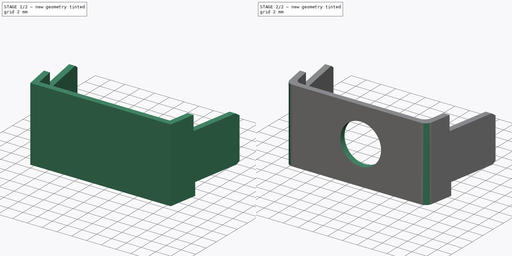
[diagram: build sequence overview — one tinted view per stage of 2, left to right]
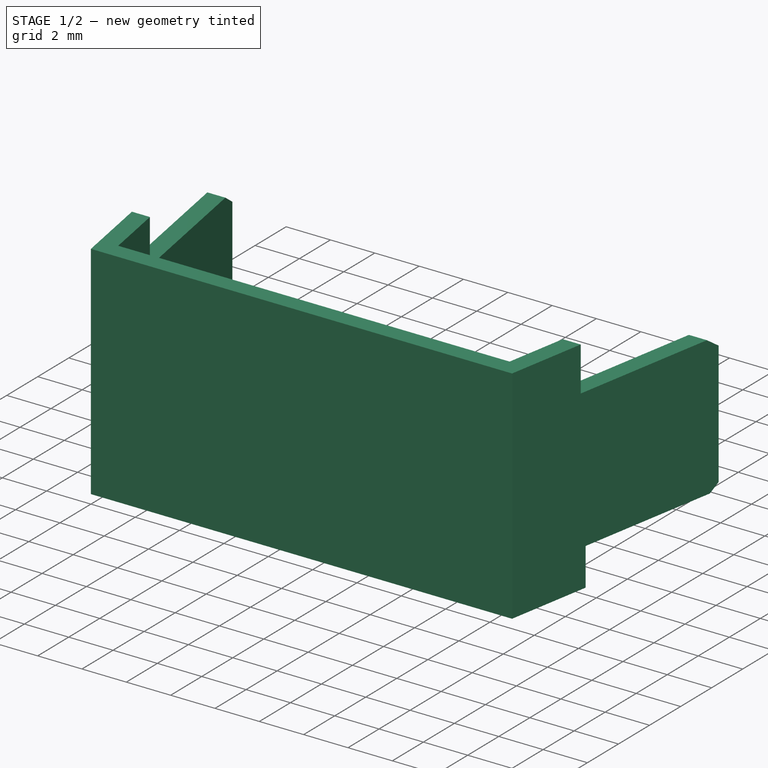
[diagram: stage 1 of 2 — iso view after this stage's code; geometry added in this stage tinted green]
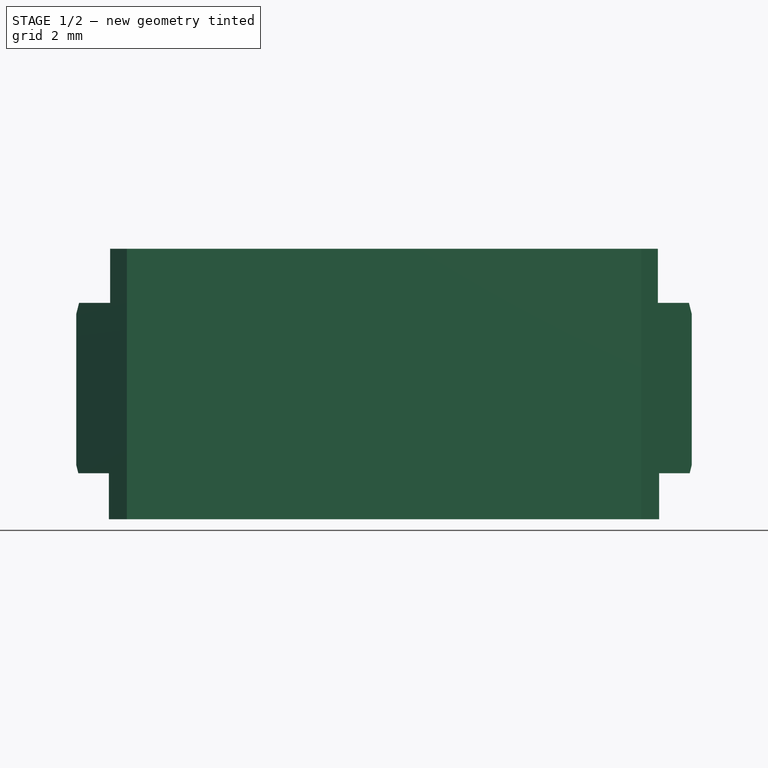
[diagram: stage 1 of 2 — front view after this stage's code; geometry added in this stage tinted green]
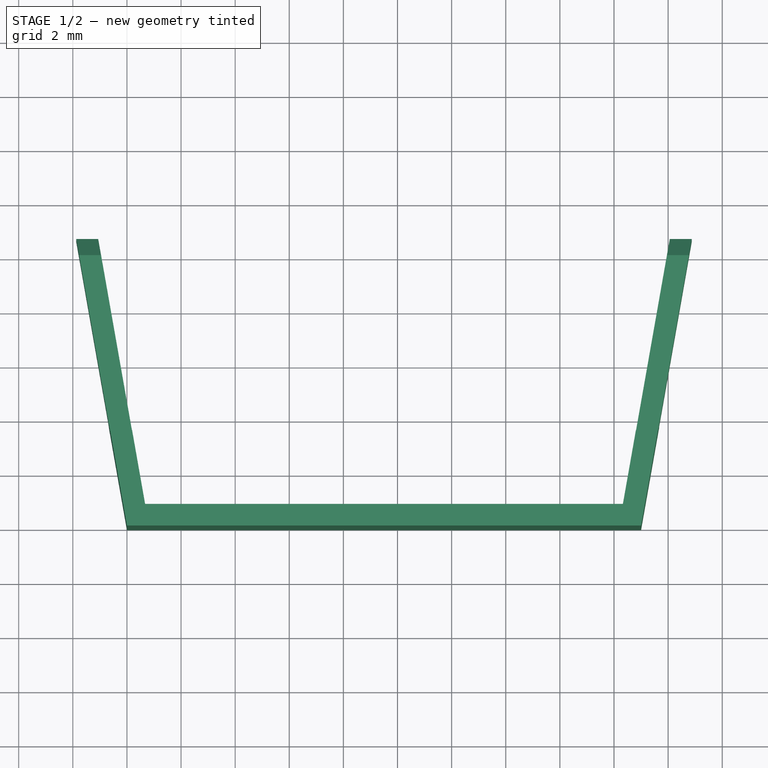
[diagram: stage 1 of 2 — top view after this stage's code; geometry added in this stage tinted green]
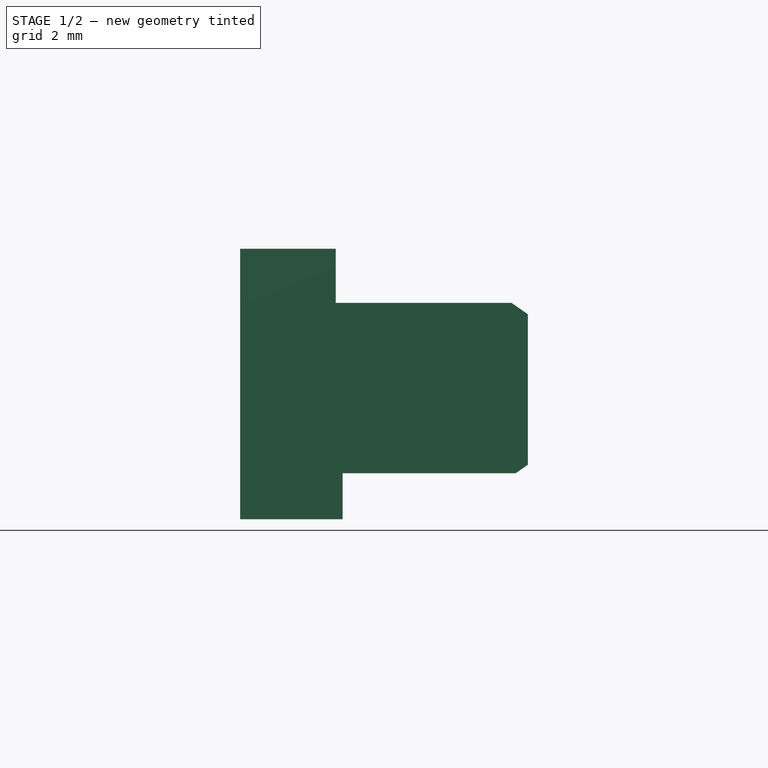
[diagram: stage 1 of 2 — right view after this stage's code; geometry added in this stage tinted green]
FCSTD DOCUMENT  (FreeCAD 0.18R16110 (Git))
Label: RIV236
License: All rights reserved
LicenseURL: http://en.wikipedia.org/wiki/All_rights_reserved
objects: Sketcher::SketchObject×3, PartDesign::Pad×1, PartDesign::Plane×1, PartDesign::Pocket×1, PartDesign::Hole×1, PartDesign::Fillet×1, PartDesign::Body×1
note: 12 computed .brp shape members not serialized (recipe doc carries the construction recipe); baked Part::Feature solids carry a one-line shape summary decoded from their .brp

FEATURE [Sketcher::SketchObject] Sketch
  MapMode = 5
  Support = -> [XY_Plane]
  sketch-geometry (9):
    g0: LineSegment StartX=0 StartY=0 StartZ=0 EndX=19 EndY=0 EndZ=0
    g1: LineSegment StartX=18.3287 StartY=0.8 StartZ=0 EndX=0.67128 EndY=0.8 EndZ=0
    g2: LineSegment StartX=18.3287 StartY=0.8 StartZ=0 EndX=20.1142 EndY=10.9262 EndZ=0
    g3: LineSegment StartX=20.1142 StartY=10.9262 StartZ=0 EndX=20.9021 EndY=10.7873 EndZ=0
    g4: LineSegment StartX=20.9021 StartY=10.7873 StartZ=0 EndX=19 EndY=0 EndZ=0
    g5: LineSegment [constr] StartX=9.5 StartY=8.74222 StartZ=0 EndX=9.5 EndY=-6.08325 EndZ=0
    g6: LineSegment StartX=0 StartY=0 StartZ=0 EndX=-1.90209 EndY=10.7873 EndZ=0
    g7: LineSegment StartX=-1.90209 StartY=10.7873 StartZ=0 EndX=-1.11425 EndY=10.9262 EndZ=0
    g8: LineSegment StartX=-1.11425 StartY=10.9262 StartZ=0 EndX=0.67128 EndY=0.8 EndZ=0
  constraints (20):
    c: Horizontal(g0)
    c: Coincident(g0,g-1)
    c: Coincident(g2,g1)
    c: Coincident(g3,g2)
    c: Coincident(g4,g3)
    c: Coincident(g4,g0)
    c: Parallel(g2,g4)
    c: Symmetric(g1,g1,g5)
    c: Symmetric(g0,g0,g5)
    c: Coincident(g6,g0)
    c: Coincident(g7,g6)
    c: Coincident(g8,g7)
    c: Coincident(g8,g1)
    c: Symmetric(g7,g2,g5)
    c: Symmetric(g6,g3,g5)
    c: DistanceY(g0,g1) = 0.8
    c: Distance(g3) = 0.8
    c: Perpendicular(g4,g3)
    c: Angle(g2,g1) = 1.74533
    c: DistanceX(g0,g0) = 19
FEATURE [PartDesign::Pad] Pad
  Length = 10
  Length2 = 100
  Profile = -> Sketch
  Type = 0
FEATURE [PartDesign::Plane] DatumPlane
  AttachmentOffset = pos=(0,0,0) rot=(0,1,0;1.5708rad)
  Length = 24.6949
  MapMode = 5
  Placement = pos=(0,0.8,0) rot=(-0.57735,0.57735,0.57735;4.18879rad)
  ResizeMode = 0
  Support = -> [Pad]
  Width = 24.0627
FEATURE [Sketcher::SketchObject] Sketch001
  MapMode = 5
  Placement = pos=(0,0.8,0) rot=(-0.57735,0.57735,0.57735;4.18879rad)
  Support = -> [DatumPlane]
  sketch-geometry (10):
    g0: LineSegment StartX=-2.73216 StartY=10.9119 StartZ=0 EndX=-2.73216 EndY=7.99998 EndZ=0
    g1: LineSegment StartX=-2.73216 StartY=7.99998 StartZ=0 EndX=-9.22805 EndY=7.99998 EndZ=0
    g2: LineSegment StartX=-9.22805 StartY=7.99998 StartZ=0 EndX=-9.83216 EndY=7.57697 EndZ=0
    g3: LineSegment StartX=-9.83216 StartY=7.57697 StartZ=0 EndX=-9.83216 EndY=2.01537 EndZ=0
    g4: LineSegment StartX=-9.83216 StartY=2.01537 StartZ=0 EndX=-9.38174 EndY=1.69998 EndZ=0
    g5: LineSegment StartX=-9.38174 StartY=1.69998 StartZ=0 EndX=-2.98514 EndY=1.69998 EndZ=0
    g6: LineSegment StartX=-2.98514 StartY=1.69998 StartZ=0 EndX=-2.98514 EndY=-3.59647 EndZ=0
    g7: LineSegment StartX=-2.98514 StartY=-3.59647 StartZ=0 EndX=-13.7321 EndY=-3.59647 EndZ=0
    g8: LineSegment StartX=-13.7321 StartY=-3.59647 StartZ=0 EndX=-13.7321 EndY=10.9119 EndZ=0
    g9: LineSegment StartX=-2.73216 StartY=10.9119 StartZ=0 EndX=-13.7321 EndY=10.9119 EndZ=0
  constraints (22):
    c: Vertical(g0)
    c: Coincident(g1,g0)
    c: Horizontal(g1)
    c: Coincident(g2,g1)
    c: Coincident(g3,g2)
    c: Vertical(g3)
    c: Coincident(g4,g3)
    c: Coincident(g5,g4)
    c: Horizontal(g5)
    c: Coincident(g6,g5)
    c: Vertical(g6)
    c: Coincident(g7,g6)
    c: Horizontal(g7)
    c: Coincident(g8,g7)
    c: Vertical(g8)
    c: Coincident(g9,g0)
    c: Coincident(g9,g8)
    c: Horizontal(g9)
    c: DistanceY(g5,g0) = 6.3
    c: Angle(g2,g1) = 2.53073
    c: Angle(g5,g4) = 2.53073
    c: DistanceX(g2,g0) = 7.1
FEATURE [PartDesign::Pocket] Pocket
  BaseFeature = -> Pad
  Length = 5
  Length2 = 100
  Midplane = true
  Profile = -> Sketch001
  Type = 1
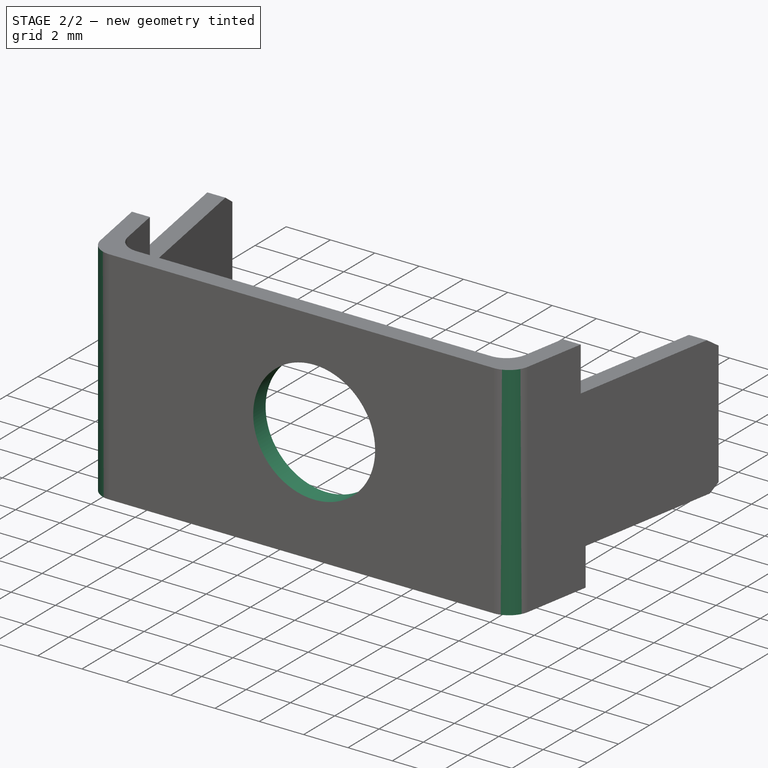
[diagram: stage 2 of 2 — iso view after this stage's code; geometry added in this stage tinted green]
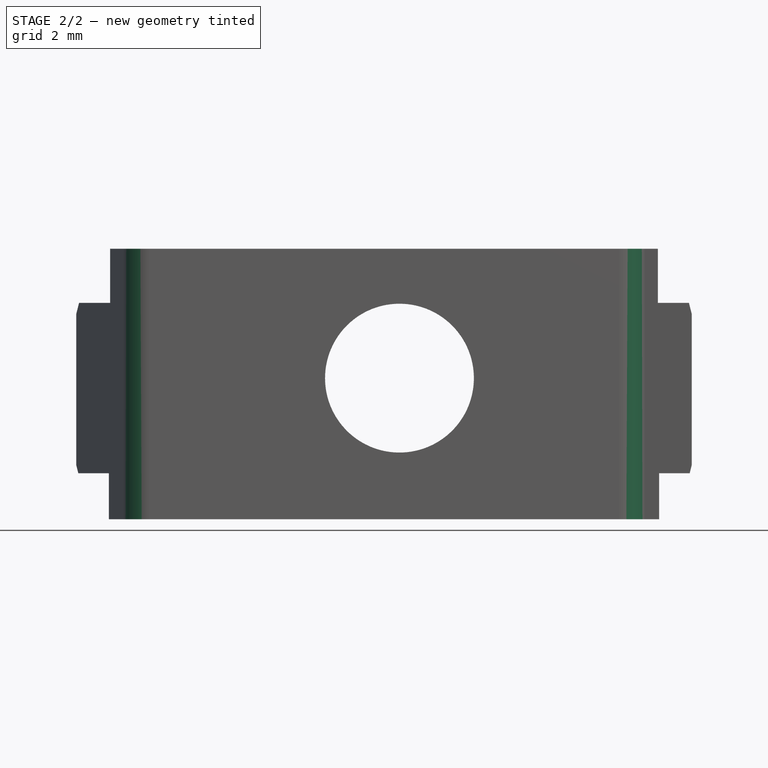
[diagram: stage 2 of 2 — front view after this stage's code; geometry added in this stage tinted green]
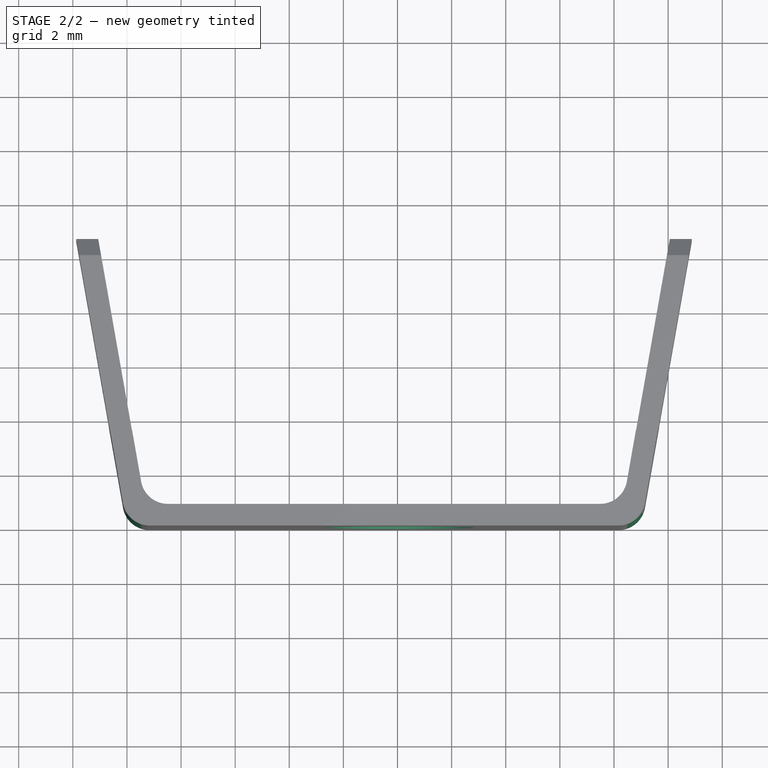
[diagram: stage 2 of 2 — top view after this stage's code; geometry added in this stage tinted green]
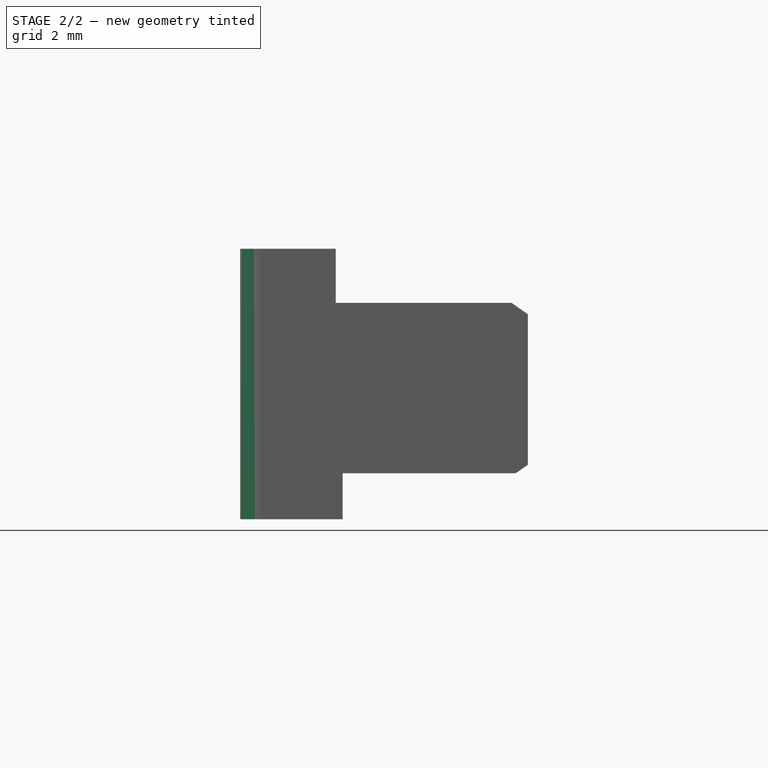
[diagram: stage 2 of 2 — right view after this stage's code; geometry added in this stage tinted green]
FEATURE [Sketcher::SketchObject] Sketch002
  MapMode = 5
  Placement = pos=(0,0.8,0) rot=(0,0.707107,0.707107;3.14159rad)
  Support = -> [Pocket]
  sketch-geometry (1):
    g0: Circle CenterX=-10.0714 CenterY=5.21661 CenterZ=0 NormalX=0 NormalY=0 NormalZ=1 AngleXU=0 Radius=1.37676
FEATURE [PartDesign::Hole] Hole
  BaseFeature = -> Pocket
  Depth = 25
  DepthType = 0
  Diameter = 5.5
  DrillPoint = 1
  DrillPointAngle = 118
  HoleCutCountersinkAngle = 90
  HoleCutDepth = 0
  HoleCutDiameter = 0
  HoleCutType = 0
  ModelActualThread = false
  Profile = -> Sketch002
  Tapered = false
  TaperedAngle = 90
  ThreadAngle = 0
  ThreadClass = 0
  ThreadCutOffInner = 0
  ThreadCutOffOuter = 0
  ThreadDirection = 0
  ThreadFit = 0
  ThreadPitch = 0
  ThreadSize = 0
  ThreadType = 0
  Threaded = false
FEATURE [PartDesign::Fillet] Fillet
  Base = -> Hole [Edge4,Edge1,Edge49,Edge50]
  BaseFeature = -> Hole
  Radius = 1
FEATURE [PartDesign::Body] Body  label="RIV236"
  Group = -> [Sketch,Pad,DatumPlane,Sketch001,Pocket,Sketch002,Hole,Fillet]
  Origin = -> Origin
  Tip = -> Fillet
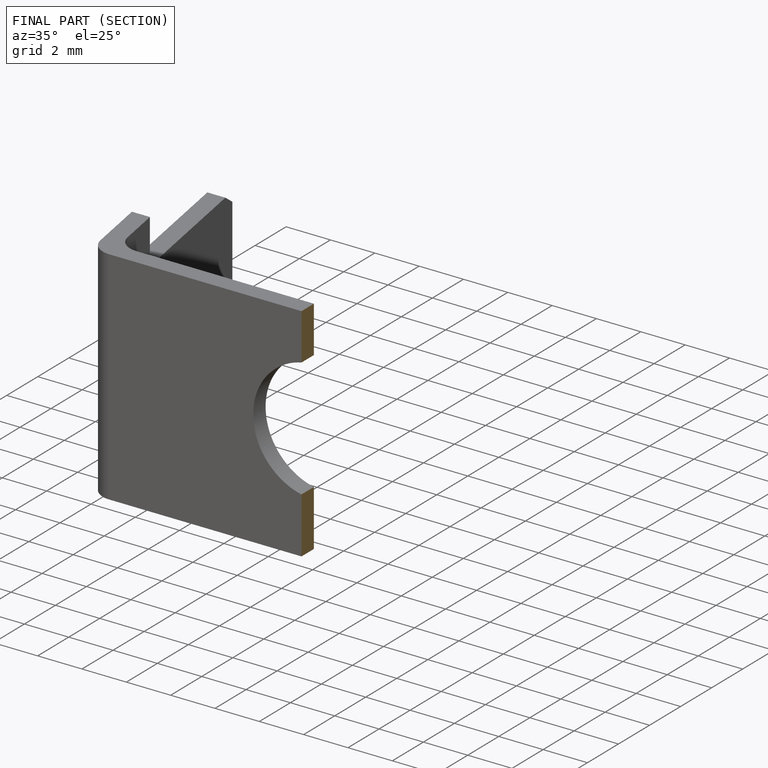
[diagram: finished part — half-section view (interior)]
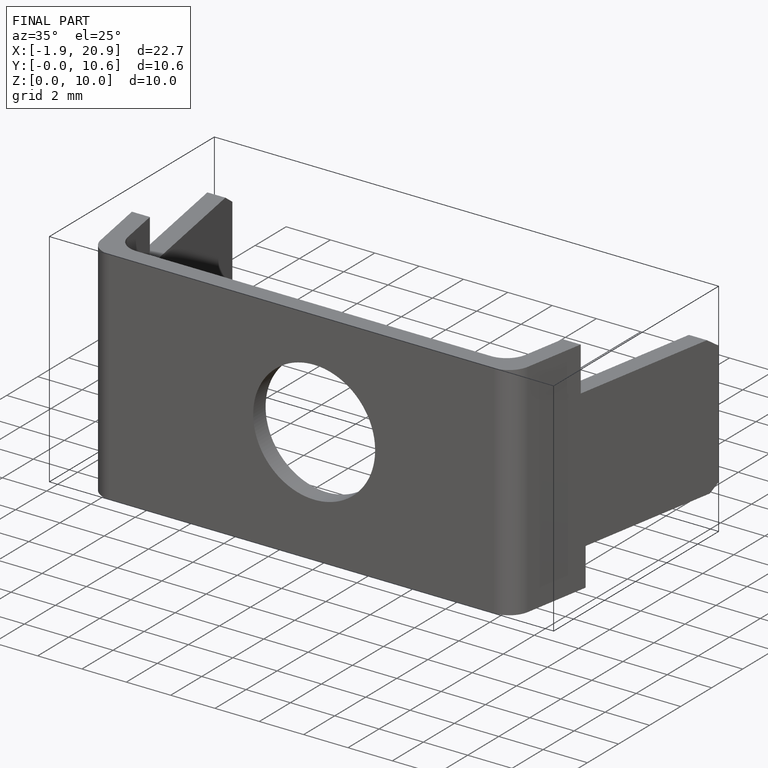
[diagram: finished part — iso view with bounding-box wireframe]
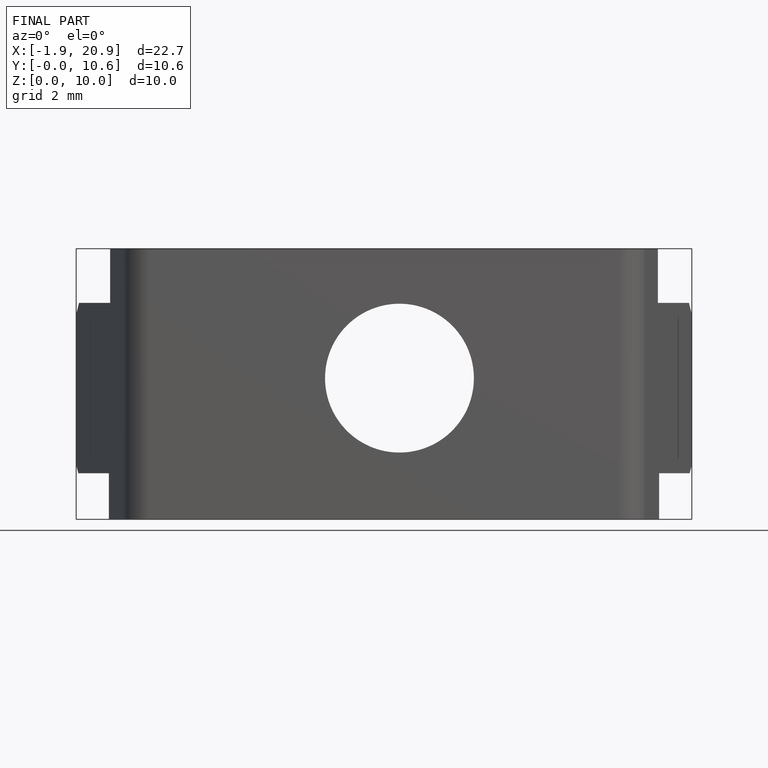
[diagram: finished part — front view with bounding-box wireframe]
